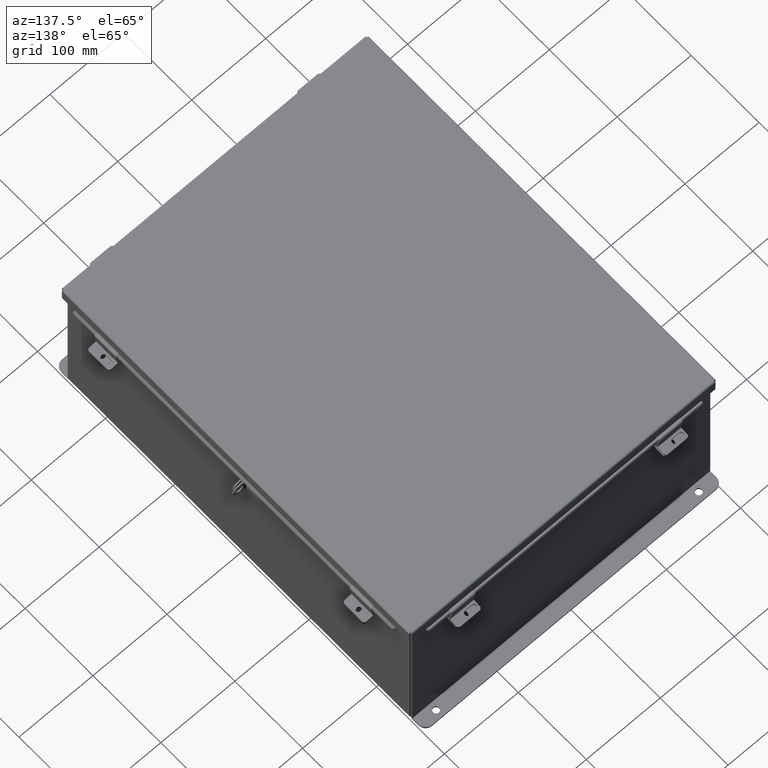
[diagram: clean part render]
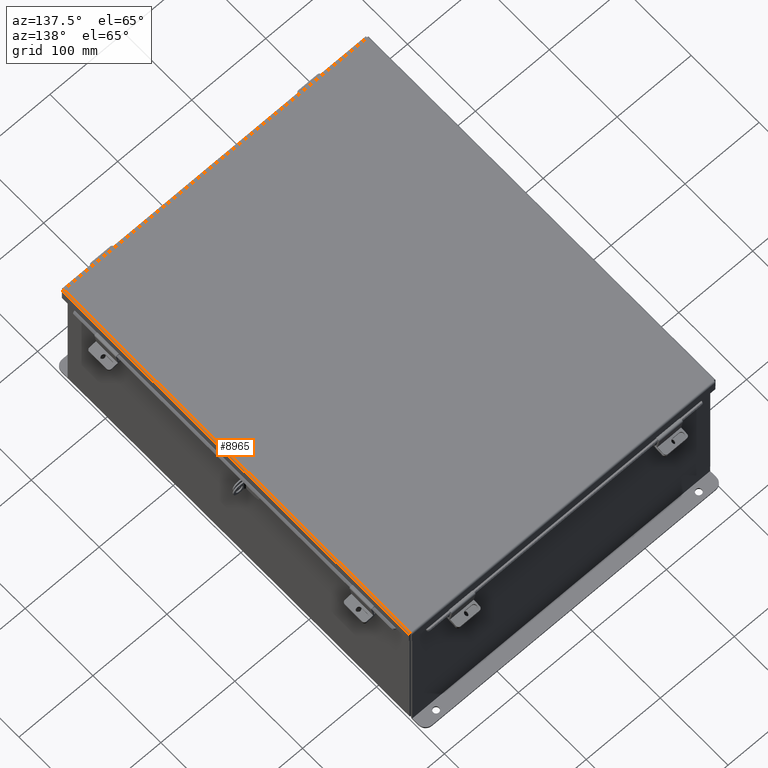
[diagram: same view with one face highlighted and labeled with its STEP entity id]
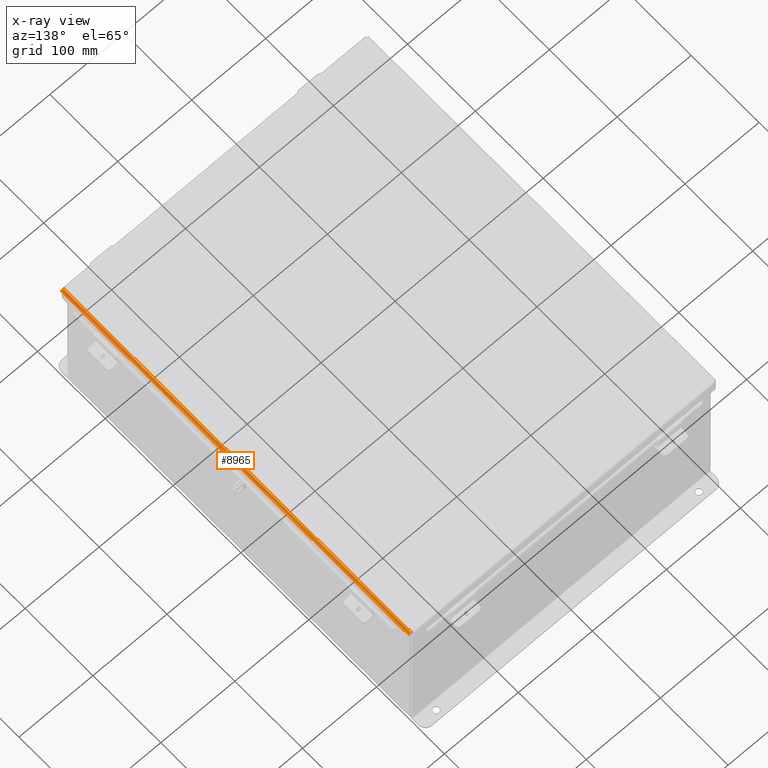
[diagram: x-ray of the same camera — body ghosted, the highlighted face saturated]
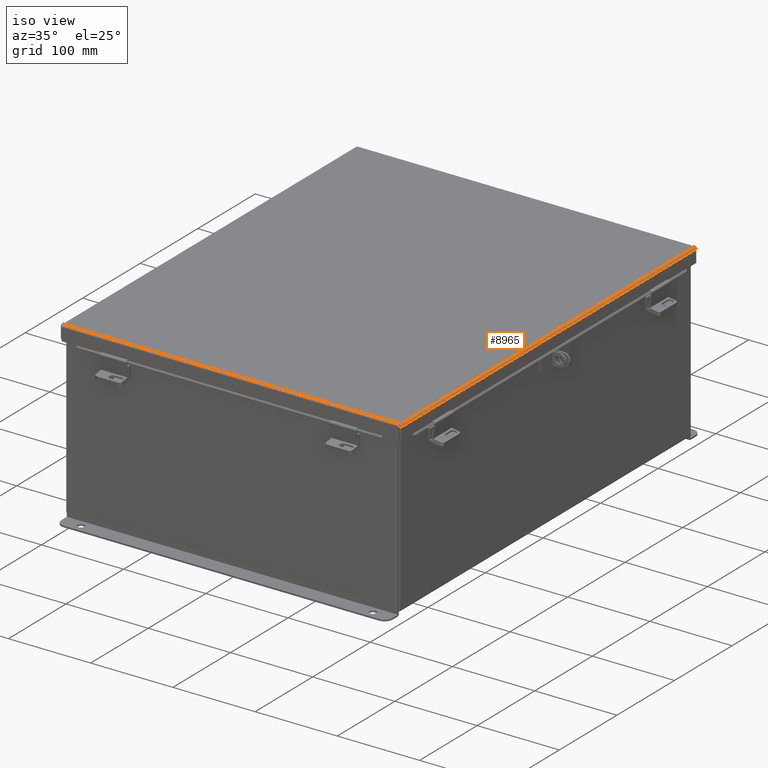
[diagram: same view with one face highlighted and labeled with its STEP entity id]
A machine part, auxiliary view. The second image highlights one B-rep face of the part: STEP entity #8965.
The next image is the same camera in x-ray: the body ghosted, the highlighted face saturated — about 0% of this face is hidden behind the body in this view.
A second angle (iso view) of the same face is appended — the face is thin or edge-on in the first view.
In plain terms, the highlighted cylindrical surface (edge-blend (fillet) strip) has radius 2.2276 mm, axis along (-0, -1, -0).
Its self-contained STEP definition (entity closure, byte-faithful):
#381 = CARTESIAN_POINT ( 'NONE',  ( -8.153967403743807900, 10.07349077682342300, -0.009955289458309037400 ) ) ;
#560 = CARTESIAN_POINT ( 'NONE',  ( -8.138680782078321100, -10.07200854377642900, -0.04089574734180012600 ) ) ;
#838 = CARTESIAN_POINT ( 'NONE',  ( -8.068549999999998300, -10.07447893218815200, 0.01300000000000010700 ) ) ;
#933 = LINE ( 'NONE', #5096, #18260 ) ;
#1746 = VECTOR ( 'NONE', #13257, 39.37007874015748100 ) ;
#1895 = FACE_OUTER_BOUND ( 'NONE', #12268, .T. ) ;
#2131 = CARTESIAN_POINT ( 'NONE',  ( -8.156249999999998200, 10.07447893218811600, 0.01300000000000010700 ) ) ;
#2297 = CARTESIAN_POINT ( 'NONE',  ( -8.112717384578527200, -10.07052631072939500, -0.06363106625866843400 ) ) ;
#2532 = CARTESIAN_POINT ( 'NONE',  ( -8.156249999999998200, -10.07447893218815200, 0.01300000000000010700 ) ) ;
#4024 = CARTESIAN_POINT ( 'NONE',  ( -8.080029903154992300, -10.06904407768236200, -0.07469999999999998900 ) ) ;
#4098 = B_SPLINE_CURVE_WITH_KNOTS ( 'NONE', 3,
 ( #19295, #15790, #7279, #19363, #9009, #21094, #10745, #381, #12468, #2131 ),
 .UNSPECIFIED., .F., .F.,
 ( 4, 2, 2, 2, 4 ),
 ( 0.0000000000000000000, 0.2500000000000000000, 0.5000000000000000000, 0.7500000000000000000, 1.000000000000000000 ),
 .UNSPECIFIED. ) ;
#4304 = DIRECTION ( 'NONE',  ( -2.258600338820354400E-033, -1.000000000000000000, 0.0000000000000000000 ) ) ;
#5096 = CARTESIAN_POINT ( 'NONE',  ( -8.068549999999996600, -10.07447893218815200, -0.07469999999999907300 ) ) ;
#5392 = CYLINDRICAL_SURFACE ( 'NONE', #20075, 0.08770000000000026400 ) ;
#5694 = CARTESIAN_POINT ( 'NONE',  ( -8.156249999999998200, -10.07447893218815200, 0.01300000000000010700 ) ) ;
#6063 = DIRECTION ( 'NONE',  ( -1.000000000000000000, 0.0000000000000000000, -3.577373637655407700E-015 ) ) ;
#6196 = EDGE_CURVE ( 'NONE', #22445, #22452, #15524, .T. ) ;
#6308 = ORIENTED_EDGE ( 'NONE', *, *, #17128, .F. ) ;
#7279 = CARTESIAN_POINT ( 'NONE',  ( -8.091505289458309500, 10.06953815536467400, -0.07241740374381128200 ) ) ;
#7436 = CARTESIAN_POINT ( 'NONE',  ( -8.156250000000000000, -10.07398485450580800, 0.001520096845007104900 ) ) ;
#8045 = CARTESIAN_POINT ( 'NONE',  ( -8.068549999999996600, 10.06854999999998100, -0.07470000000000015500 ) ) ;
#8457 = VERTEX_POINT ( 'NONE', #14697 ) ;
#8599 = DIRECTION ( 'NONE',  ( 2.258600338820354400E-033, 1.000000000000000000, -0.0000000000000000000 ) ) ;
#8965 = ADVANCED_FACE ( 'NONE', ( #1895 ), #5392, .T. ) ;
#9009 = CARTESIAN_POINT ( 'NONE',  ( -8.122445747341799900, 10.07102038841170500, -0.05713078207832045200 ) ) ;
#10081 = B_SPLINE_CURVE_WITH_KNOTS ( 'NONE', 3,
 ( #5694, #7436, #21285, #10915, #560, #12642, #2297, #14370, #4024, #16125 ),
 .UNSPECIFIED., .F., .F.,
 ( 4, 2, 2, 2, 4 ),
 ( 0.0000000000000000000, 0.2500000000000000000, 0.5000000000000000000, 0.7500000000000000000, 1.000000000000000000 ),
 .UNSPECIFIED. ) ;
#10745 = CARTESIAN_POINT ( 'NONE',  ( -8.145181066258665200, 10.07250262145873700, -0.03116738457852800300 ) ) ;
#10915 = CARTESIAN_POINT ( 'NONE',  ( -8.145181066258663400, -10.07250262145877100, -0.03116738457852799200 ) ) ;
#12268 = EDGE_LOOP ( 'NONE', ( #19043, #13427, #19824, #6308 ) ) ;
#12468 = CARTESIAN_POINT ( 'NONE',  ( -8.156249999999998200, 10.07398485450577000, 0.001520096845007103900 ) ) ;
#12642 = CARTESIAN_POINT ( 'NONE',  ( -8.122445747341799900, -10.07102038841173900, -0.05713078207832045900 ) ) ;
#13257 = DIRECTION ( 'NONE',  ( 2.258600338820354400E-033, 1.000000000000000000, -0.0000000000000000000 ) ) ;
#13427 = ORIENTED_EDGE ( 'NONE', *, *, #19702, .F. ) ;
#14370 = CARTESIAN_POINT ( 'NONE',  ( -8.091505289458305900, -10.06953815536470200, -0.07241740374381128200 ) ) ;
#14611 = CARTESIAN_POINT ( 'NONE',  ( -8.156249999999998200, 10.07447893218811600, 0.01300000000000010700 ) ) ;
#14697 = CARTESIAN_POINT ( 'NONE',  ( -8.068549999999996600, -10.06855000000001600, -0.07469999999999907300 ) ) ;
#14916 = CARTESIAN_POINT ( 'NONE',  ( -8.156249999999998200, 10.15624999999998200, 0.01300000000000010700 ) ) ;
#15524 = LINE ( 'NONE', #14916, #1746 ) ;
#15790 = CARTESIAN_POINT ( 'NONE',  ( -8.080029903154988700, 10.06904407768232800, -0.07469999999999998900 ) ) ;
#16125 = CARTESIAN_POINT ( 'NONE',  ( -8.068549999999996600, -10.06855000000001600, -0.07469999999999907300 ) ) ;
#16852 = VERTEX_POINT ( 'NONE', #8045 ) ;
#17128 = EDGE_CURVE ( 'NONE', #16852, #22452, #4098, .T. ) ;
#18260 = VECTOR ( 'NONE', #8599, 39.37007874015748100 ) ;
#19043 = ORIENTED_EDGE ( 'NONE', *, *, #21445, .F. ) ;
#19295 = CARTESIAN_POINT ( 'NONE',  ( -8.068549999999996600, 10.06854999999998100, -0.07470000000000015500 ) ) ;
#19363 = CARTESIAN_POINT ( 'NONE',  ( -8.112717384578523600, 10.07052631072936000, -0.06363106625866844800 ) ) ;
#19702 = EDGE_CURVE ( 'NONE', #22445, #8457, #10081, .T. ) ;
#19824 = ORIENTED_EDGE ( 'NONE', *, *, #6196, .T. ) ;
#20075 = AXIS2_PLACEMENT_3D ( 'NONE', #838, #4304, #6063 ) ;
#21094 = CARTESIAN_POINT ( 'NONE',  ( -8.138680782078321100, 10.07200854377639500, -0.04089574734180014700 ) ) ;
#21285 = CARTESIAN_POINT ( 'NONE',  ( -8.153967403743809700, -10.07349077682346200, -0.009955289458309040900 ) ) ;
#21445 = EDGE_CURVE ( 'NONE', #8457, #16852, #933, .T. ) ;
#22445 = VERTEX_POINT ( 'NONE', #2532 ) ;
#22452 = VERTEX_POINT ( 'NONE', #14611 ) ;